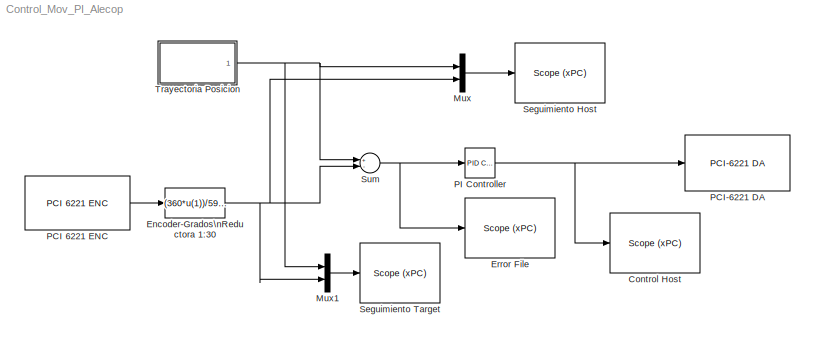
MODEL Control_Mov_PI_Alecop
KIND model
BLOCK [Reference] Control Host  REF=xpclib/Misc./Scope (xPC) 
  FunctionWithSeparateData = off
  GeneratePreprocessorConditionals = off
  Ports = [1]
  RTWMemSecDataConstants = Inherit from model
  RTWMemSecDataInternal = Inherit from model
  RTWMemSecDataParameters = Inherit from model
  RTWMemSecFuncExecute = Inherit from model
  RTWMemSecFuncInitTerm = Inherit from model
  SID = 1
  ShowPortLabels = FromPortIcon
  SourceBlock = xpclib/Misc./Scope (xPC)
  SourceType = xpcscopeblock
  SystemSampleTime = -1
  autorestart = off
  autostart = on
  dynamicfilemode = off
  filename = data.dat
  formatstr = '%15.6f'
  grid = on
  interleave = 1
  maxwritefilesize = 512*1024^2
  mode = Lazy
  noprepostsamples = 0
  nosamples = 4950
  scopeno = 4
  scopetype = Host
  triggerlevel = 0.0
  triggermode = FreeRun
  triggersample = 0
  triggerscope = 1
  triggersignal = 1
  triggerslope = Either
  viewmode = Graphical redraw
  writesize = 512
  ylimits = [-10,10]
BLOCK [Fcn] Encoder-Grados\nReductora 1:30
  Expr = (360*u(1))/5999
  SID = 2
BLOCK [Reference] Error File  REF=xpclib/Misc./Scope (xPC) 
  FunctionWithSeparateData = off
  GeneratePreprocessorConditionals = off
  Ports = [1]
  RTWMemSecDataConstants = Inherit from model
  RTWMemSecDataInternal = Inherit from model
  RTWMemSecDataParameters = Inherit from model
  RTWMemSecFuncExecute = Inherit from model
  RTWMemSecFuncInitTerm = Inherit from model
  SID = 3
  ShowPortLabels = FromPortIcon
  SourceBlock = xpclib/Misc./Scope (xPC)
  SourceType = xpcscopeblock
  SystemSampleTime = -1
  autorestart = off
  autostart = on
  dynamicfilemode = off
  filename = <path>
  formatstr = '%15.6f'
  grid = on
  interleave = 1
  maxwritefilesize = 512*1024^2
  mode = Lazy
  noprepostsamples = 0
  nosamples = 4950
  scopeno = 1
  scopetype = File
  triggerlevel = 0.0
  triggermode = FreeRun
  triggersample = 0
  triggerscope = 1
  triggersignal = 1
  triggerslope = Either
  viewmode = Graphical redraw
  writesize = 512
  ylimits = [-10,10]
BLOCK [Mux] Mux
  DisplayOption = bar
  Inputs = 2
  Ports = [2, 1]
  SID = 4
BLOCK [Mux] Mux1
  DisplayOption = bar
  Inputs = 2
  Ports = [2, 1]
  SID = 5
BLOCK [Reference] PCI 6221 ENC   REF=xpcnilib/Incremental\nEncoder/PCI 6221 ENC 
  Ports = [0, 1]
  SID = 6
  SourceBlock = xpcnilib/Incremental\nEncoder/PCI 6221 ENC
  SourceType = encinpnipci6221
  channel = 0
  countMode = Quadrature Mode x4
  filter = None
  indexPhase = A low B low
  initCount = 0
  reload = off
  sampleTime = 0.01
  slot = -1
BLOCK [Reference] PCI-6221 DA  REF=xpcnilib/D//A/M Series/PCI-6221 DA
  Ports = [1]
  SID = 7
  SourceBlock = xpcnilib/D//A/M Series/PCI-6221 DA
  SourceType = danipci6221
  channel = [1]
  initValue = [0]
  reset = [1]
  sampletime = 0.01
  slot = -1
BLOCK [Reference] PI Controller  REF=simulink_need_slupdate/PID Controller
  D = 0
  FunctionWithSeparateData = off
  GeneratePreprocessorConditionals = off
  I = 0.01
  P = 5
  Ports = [1, 1]
  RTWMemSecDataConstants = Inherit from model
  RTWMemSecDataInternal = Inherit from model
  RTWMemSecDataParameters = Inherit from model
  RTWMemSecFuncExecute = Inherit from model
  RTWMemSecFuncInitTerm = Inherit from model
  SID = 8
  ShowPortLabels = FromPortIcon
  SourceBlock = simulink_need_slupdate/PID Controller
  SourceType = PID Controller
  SystemSampleTime = -1
BLOCK [Reference] Seguimiento Host  REF=xpclib/Misc./Scope (xPC) 
  FunctionWithSeparateData = off
  GeneratePreprocessorConditionals = off
  Ports = [1]
  RTWMemSecDataConstants = Inherit from model
  RTWMemSecDataInternal = Inherit from model
  RTWMemSecDataParameters = Inherit from model
  RTWMemSecFuncExecute = Inherit from model
  RTWMemSecFuncInitTerm = Inherit from model
  SID = 9
  ShowPortLabels = FromPortIcon
  SourceBlock = xpclib/Misc./Scope (xPC)
  SourceType = xpcscopeblock
  SystemSampleTime = -1
  autorestart = off
  autostart = on
  dynamicfilemode = off
  filename = data.dat
  formatstr = '%15.6f'
  grid = on
  interleave = 1
  maxwritefilesize = 512*1024^2
  mode = Lazy
  noprepostsamples = 0
  nosamples = 4950
  scopeno = 3
  scopetype = Host
  triggerlevel = 0.0
  triggermode = FreeRun
  triggersample = 0
  triggerscope = 1
  triggersignal = 1
  triggerslope = Either
  viewmode = Graphical redraw
  writesize = 512
  ylimits = [0,20]
BLOCK [Reference] Seguimiento Target  REF=xpclib/Misc./Scope (xPC) 
  FunctionWithSeparateData = off
  GeneratePreprocessorConditionals = off
  Ports = [1]
  RTWMemSecDataConstants = Inherit from model
  RTWMemSecDataInternal = Inherit from model
  RTWMemSecDataParameters = Inherit from model
  RTWMemSecFuncExecute = Inherit from model
  RTWMemSecFuncInitTerm = Inherit from model
  SID = 10
  ShowPortLabels = FromPortIcon
  SourceBlock = xpclib/Misc./Scope (xPC)
  SourceType = xpcscopeblock
  SystemSampleTime = -1
  autorestart = off
  autostart = on
  dynamicfilemode = off
  filename = data.dat
  formatstr = '%15.6f'
  grid = on
  interleave = 1
  maxwritefilesize = 512*1024^2
  mode = Lazy
  noprepostsamples = 0
  nosamples = 1000
  scopeno = 2
  scopetype = Target
  triggerlevel = 0.0
  triggermode = FreeRun
  triggersample = 0
  triggerscope = 1
  triggersignal = 1
  triggerslope = Either
  viewmode = Graphical redraw
  writesize = 512
  ylimits = [0,50]
BLOCK [Sum] Sum
  Inputs = +-
  Ports = [2, 1]
  SID = 11
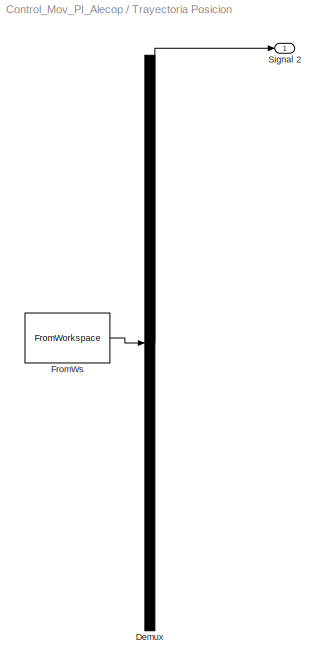
BLOCK [SubSystem] Trayectoria Posicion
  ClipboardFcn = sigbuilder_block('clipboard');
  CloseFcn = sigbuilder_block('close');
  CopyFcn = sigbuilder_block('copy');
  DeleteFcn = sigbuilder_block('delete');
  FunctionWithSeparateData = off
  LoadFcn = sigbuilder_block('load',[18.75 348.75 519.75 399.75 ]);
  MaskDescription = Sigbuilder GUI
  MaskDisplay = plot(0,0,100,100,[10,10,40,40,10],[80,20,20,80,80],[40,10],[50,50], [40,27,10],[65,72,56],[40,25,25,10],[28,28,43,43]);
  MaskHideContents = on
  MaskIconFrame = on
  MaskIconOpaque = off
  MaskIconRotate = port
  MaskIconUnits = autoscale
  MaskInitialization = if ~strcmp(get_param(bdroot(gcbh),'SimulationStatus'),'stopped') tuvar = sigbuilder_block('maskInit'); end
  MaskPortRotate = default
  MaskType = Sigbuilder block
  MinAlgLoopOccurrences = off
  ModelCloseFcn = sigbuilder_block('modelClose');
  NameChangeFcn = sigbuilder_block('namechange');
  Opaque = off
  OpenFcn = sigbuilder_block('open',[1230.75 149.25 519.75 399.75 ]);
  Ports = [0, 1]
  PreSaveFcn = sigbuilder_block('preSave');
  PropExecContextOutsideSubsystem = off
  RTWSystemCode = Auto
  RequestExecContextInheritance = off
  SID = 12
  StartFcn = sigbuilder_block('start');
  StopFcn = sigbuilder_block('stop');
  Tag = STV Subsys
BLOCK [Demux] Trayectoria Posicion/Demux
  Outputs = 1
  Ports = [1, 1]
  SID = 13
  Tag = STV Demux
BLOCK [FromWorkspace] Trayectoria Posicion/FromWs
  OutputAfterFinalValue = Holding final value
  SID = 14
  SampleTime = 0
  SigBuilderData = DataTag0
  Tag = STV FromWs
  VariableName = tuvar
  VnvData = DataTag1
BLOCK [Outport] Trayectoria Posicion/Signal 2
  IconDisplay = Port number
  SID = 15
  Tag = STV Outport
NET Encoder-Grados\nReductora 1:30:1 -> Mux1:2, Mux:2, Sum:2
LINE Mux1:1 -> Seguimiento Target:1
LINE Mux:1 -> Seguimiento Host:1
LINE PCI 6221 ENC :1 -> Encoder-Grados\nReductora 1:30:1
NET PI Controller:1 -> Control Host:1, PCI-6221 DA:1
NET Sum:1 -> Error File:1, PI Controller:1
LINE Trayectoria Posicion/Demux:1 -> Trayectoria Posicion/Signal 2:1
LINE Trayectoria Posicion/FromWs:1 -> Trayectoria Posicion/Demux:1
NET Trayectoria Posicion:1 -> Mux1:1, Mux:1, Sum:1
note: NET lines group one-source signal fan-out (src -> all destinations, sorted); 1:1 wires keep LINE
note: 1 file-system path scrubbed to <path> (not preserved elsewhere — flat text is the only slx artifact)
